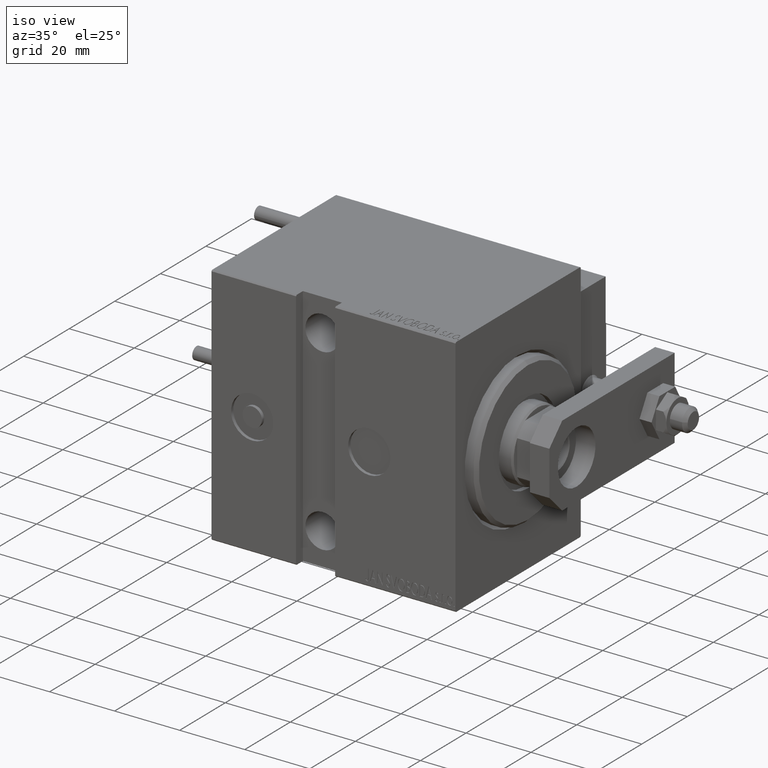
[diagram: clean part render]
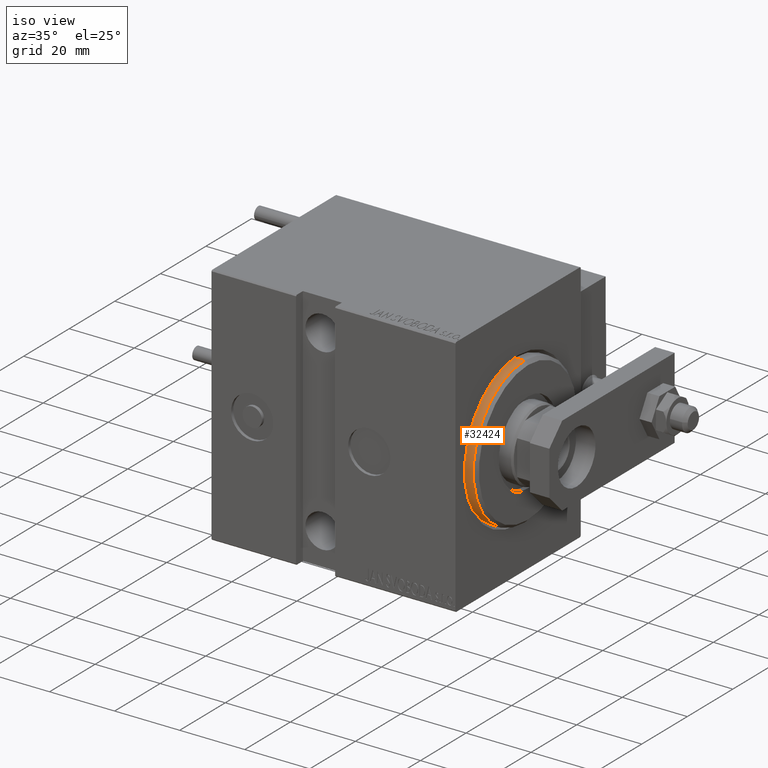
[diagram: same view with one face highlighted and labeled with its STEP entity id]
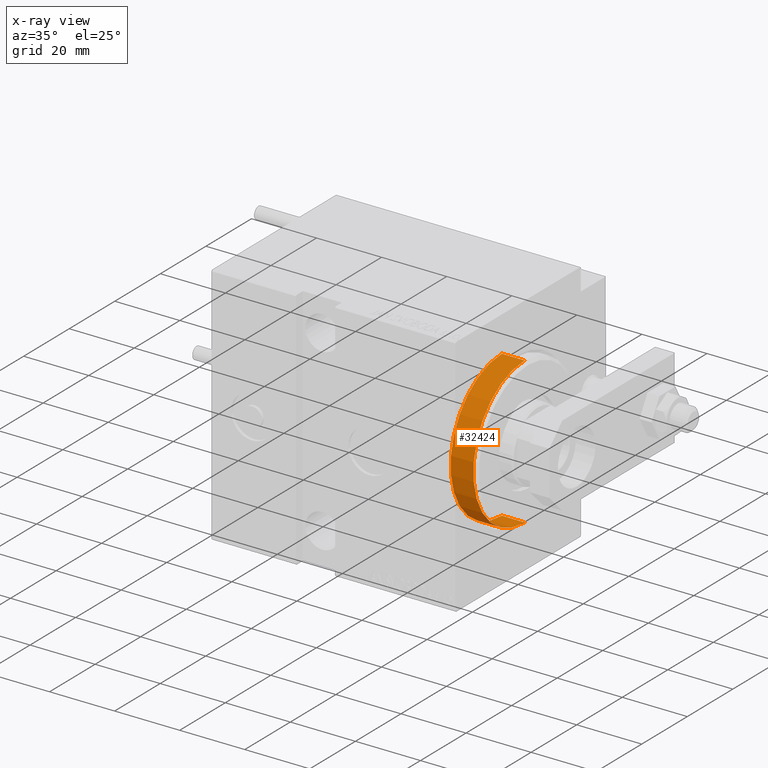
[diagram: x-ray of the same camera — body ghosted, the highlighted face saturated]
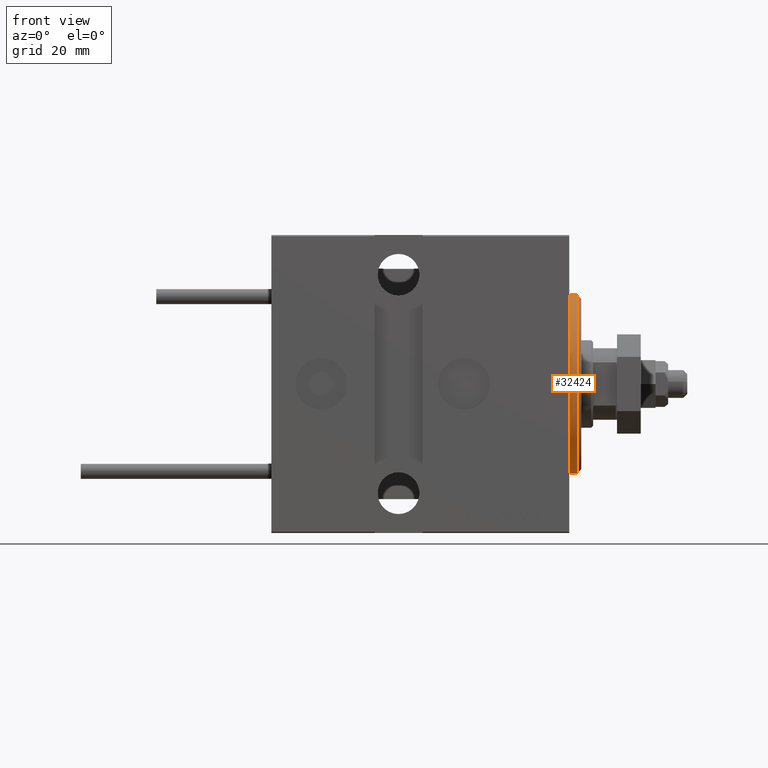
[diagram: same view with one face highlighted and labeled with its STEP entity id]
A machine part, iso view. The second image highlights one B-rep face of the part: STEP entity #32424.
The next image is the same camera in x-ray: the body ghosted, the highlighted face saturated — about 0% of this face is hidden behind the body in this view.
A second angle (front view) of the same face is appended — the face is thin or edge-on in the first view.
In plain terms, the highlighted cylindrical surface (partial cylindrical patch) has radius 22.5 mm, axis along (-1, -0, -0).
Its self-contained STEP definition (entity closure, byte-faithful):
#355 = CYLINDRICAL_SURFACE ( 'NONE', #21862, 22.50000000000000355 ) ;
#1910 = ORIENTED_EDGE ( 'NONE', *, *, #37880, .T. ) ;
#2145 = DIRECTION ( 'NONE',  ( -1.000000000000000000, -0.000000000000000000, -0.000000000000000000 ) ) ;
#4360 = DIRECTION ( 'NONE',  ( 0.000000000000000000, 0.000000000000000000, 1.000000000000000000 ) ) ;
#5552 = AXIS2_PLACEMENT_3D ( 'NONE', #16523, #47085, #31326 ) ;
#5891 = LINE ( 'NONE', #36434, #14159 ) ;
#6096 = ORIENTED_EDGE ( 'NONE', *, *, #30844, .T. ) ;
#14159 = VECTOR ( 'NONE', #2145, 1000.000000000000000 ) ;
#15116 = LINE ( 'NONE', #42405, #41572 ) ;
#15174 = VERTEX_POINT ( 'NONE', #15220 ) ;
#15220 = CARTESIAN_POINT ( 'NONE',  ( 1.999999999999978462, 0.000000000000000000, 22.50000000000000355 ) ) ;
#15365 = FACE_OUTER_BOUND ( 'NONE', #35341, .T. ) ;
#16523 = CARTESIAN_POINT ( 'NONE',  ( -5.000000000000000000, 0.000000000000000000, 0.000000000000000000 ) ) ;
#20224 = ORIENTED_EDGE ( 'NONE', *, *, #41614, .F. ) ;
#21862 = AXIS2_PLACEMENT_3D ( 'NONE', #30906, #38172, #4360 ) ;
#22610 = AXIS2_PLACEMENT_3D ( 'NONE', #32532, #28767, #32282 ) ;
#24787 = CARTESIAN_POINT ( 'NONE',  ( -5.000000000000000000, 2.755455298081545172E-15, -22.50000000000000355 ) ) ;
#28219 = CIRCLE ( 'NONE', #22610, 22.50000000000000355 ) ;
#28767 = DIRECTION ( 'NONE',  ( -1.000000000000000000, 0.000000000000000000, 0.000000000000000000 ) ) ;
#30407 = DIRECTION ( 'NONE',  ( -1.000000000000000000, -0.000000000000000000, -0.000000000000000000 ) ) ;
#30844 = EDGE_CURVE ( 'NONE', #46960, #15174, #28219, .T. ) ;
#30906 = CARTESIAN_POINT ( 'NONE',  ( 3.000000000000000000, 0.000000000000000000, 0.000000000000000000 ) ) ;
#31326 = DIRECTION ( 'NONE',  ( 0.000000000000000000, 0.000000000000000000, -1.000000000000000000 ) ) ;
#32282 = DIRECTION ( 'NONE',  ( 0.000000000000000000, 0.000000000000000000, -1.000000000000000000 ) ) ;
#32424 = ADVANCED_FACE ( 'NONE', ( #15365 ), #355, .T. ) ;
#32532 = CARTESIAN_POINT ( 'NONE',  ( 1.999999999999978462, 0.000000000000000000, 0.000000000000000000 ) ) ;
#32637 = ORIENTED_EDGE ( 'NONE', *, *, #37286, .T. ) ;
#34776 = VERTEX_POINT ( 'NONE', #48046 ) ;
#35341 = EDGE_LOOP ( 'NONE', ( #20224, #6096, #1910, #32637 ) ) ;
#36434 = CARTESIAN_POINT ( 'NONE',  ( 3.000000000000000000, 2.755455298081545172E-15, -22.50000000000000355 ) ) ;
#37286 = EDGE_CURVE ( 'NONE', #34776, #37428, #37544, .T. ) ;
#37428 = VERTEX_POINT ( 'NONE', #24787 ) ;
#37544 = CIRCLE ( 'NONE', #5552, 22.50000000000000355 ) ;
#37880 = EDGE_CURVE ( 'NONE', #15174, #34776, #15116, .T. ) ;
#38172 = DIRECTION ( 'NONE',  ( -1.000000000000000000, -0.000000000000000000, -0.000000000000000000 ) ) ;
#41572 = VECTOR ( 'NONE', #30407, 1000.000000000000000 ) ;
#41614 = EDGE_CURVE ( 'NONE', #46960, #37428, #5891, .T. ) ;
#42405 = CARTESIAN_POINT ( 'NONE',  ( 3.000000000000000000, 0.000000000000000000, 22.50000000000000355 ) ) ;
#45343 = CARTESIAN_POINT ( 'NONE',  ( 1.999999999999978462, 2.755455298081545172E-15, -22.50000000000000355 ) ) ;
#46960 = VERTEX_POINT ( 'NONE', #45343 ) ;
#47085 = DIRECTION ( 'NONE',  ( 1.000000000000000000, 0.000000000000000000, 0.000000000000000000 ) ) ;
#48046 = CARTESIAN_POINT ( 'NONE',  ( -5.000000000000000000, 0.000000000000000000, 22.50000000000000355 ) ) ;